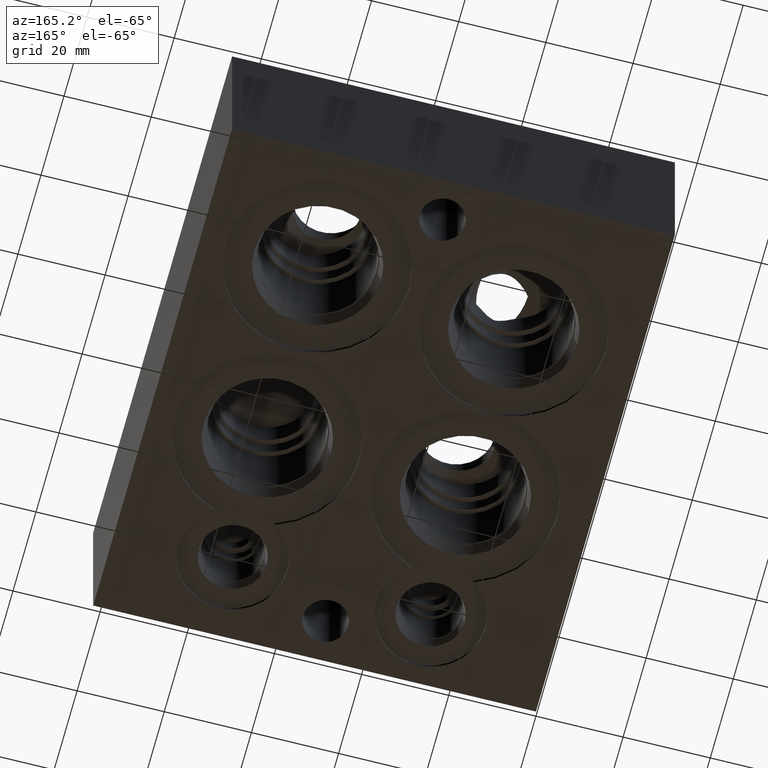
[diagram: clean part render]
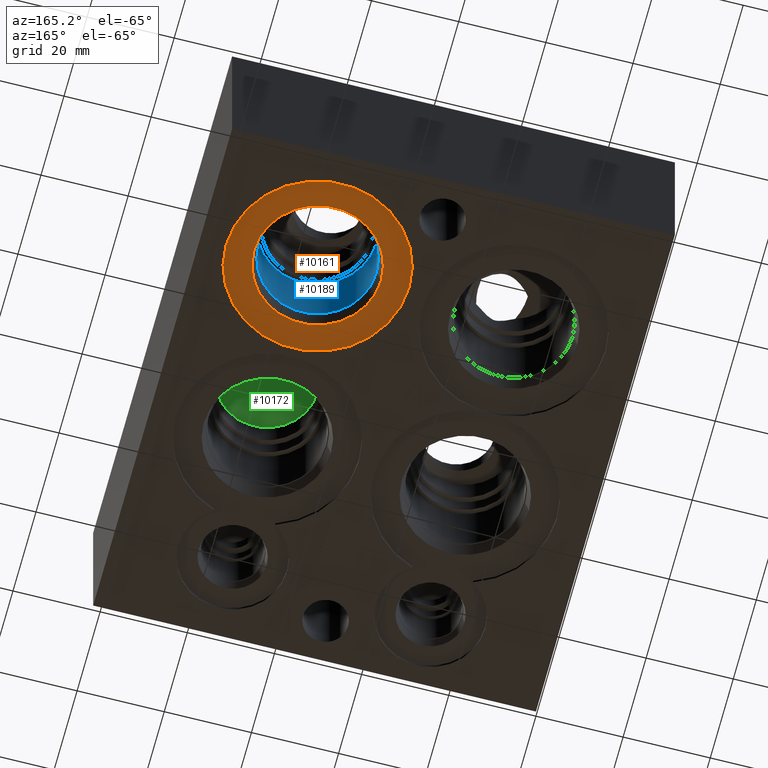
[diagram: same view with three faces highlighted in distinct colors, each labeled with its STEP entity id]
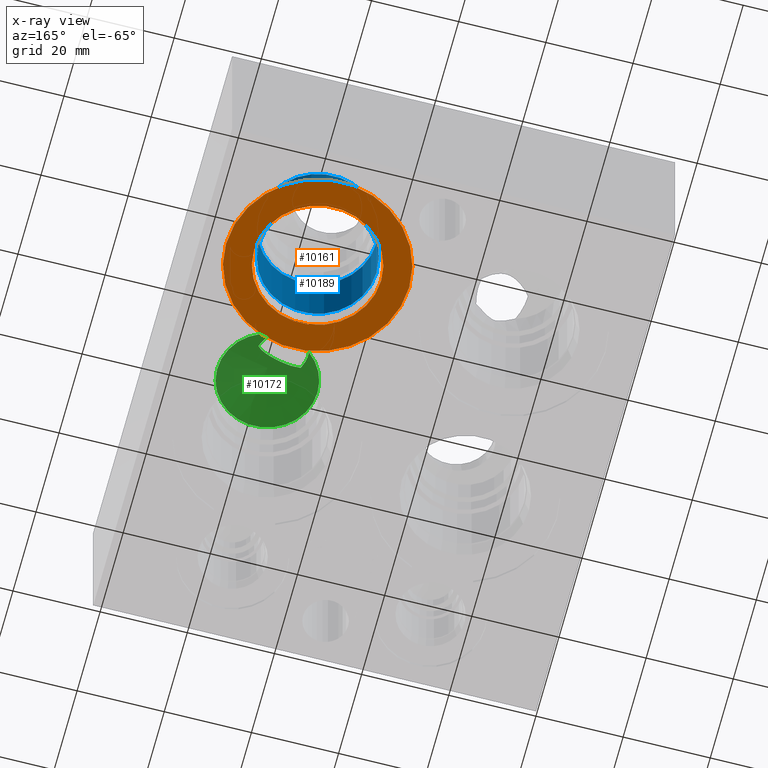
[diagram: x-ray of the same camera — body ghosted, the three highlighted faces saturated]
A machine part, auxiliary view with three faces highlighted in distinct colors.
The next image is the same camera in x-ray (body ghosted, the three faces saturated) — at least one of them is partly hidden behind the body in this view.
Their STEP definitions:

[orange] entity #10161 — the highlighted planar face has unit normal (0, 0, 1).
#232=CIRCLE('',#10592,21.0185);
#233=CIRCLE('',#10593,21.0185);
#234=CIRCLE('',#10595,14.5923);
#235=CIRCLE('',#10596,14.5923);
#703=FACE_BOUND('',#1714,.T.);
#1147=FACE_OUTER_BOUND('',#1713,.T.);
#1713=EDGE_LOOP('',(#8440,#8441));
#1714=EDGE_LOOP('',(#8442,#8443));
#4580=VERTEX_POINT('',#16866);
#4581=VERTEX_POINT('',#16868);
#4582=VERTEX_POINT('',#16872);
#4583=VERTEX_POINT('',#16873);
#5916=EDGE_CURVE('',#4580,#4581,#232,.T.);
#5917=EDGE_CURVE('',#4581,#4580,#233,.T.);
#5918=EDGE_CURVE('',#4582,#4583,#234,.T.);
#5919=EDGE_CURVE('',#4583,#4582,#235,.T.);
#8440=ORIENTED_EDGE('',*,*,#5917,.F.);
#8441=ORIENTED_EDGE('',*,*,#5916,.F.);
#8442=ORIENTED_EDGE('',*,*,#5918,.T.);
#8443=ORIENTED_EDGE('',*,*,#5919,.T.);
#9333=PLANE('',#10594);
#10161=ADVANCED_FACE('',(#1147,#703),#9333,.F.);
#10592=AXIS2_PLACEMENT_3D('',#16869,#12380,#12381);
#10593=AXIS2_PLACEMENT_3D('',#16870,#12382,#12383);
#10594=AXIS2_PLACEMENT_3D('',#16871,#12384,#12385);
#10595=AXIS2_PLACEMENT_3D('',#16874,#12386,#12387);
#10596=AXIS2_PLACEMENT_3D('',#16875,#12388,#12389);
#12380=DIRECTION('center_axis',(0.,0.,1.));
#12381=DIRECTION('ref_axis',(1.,0.,0.));
#12382=DIRECTION('center_axis',(0.,0.,1.));
#12383=DIRECTION('ref_axis',(1.,0.,0.));
#12384=DIRECTION('center_axis',(0.,0.,1.));
#12385=DIRECTION('ref_axis',(1.,0.,0.));
#12386=DIRECTION('center_axis',(0.,0.,1.));
#12387=DIRECTION('ref_axis',(1.,0.,0.));
#12388=DIRECTION('center_axis',(0.,0.,1.));
#12389=DIRECTION('ref_axis',(1.,0.,0.));
#16866=CARTESIAN_POINT('',(53.6067,92.8624,0.7874));
#16868=CARTESIAN_POINT('',(95.6437,92.8624,0.7874));
#16869=CARTESIAN_POINT('Origin',(74.6252,92.8624,0.7874));
#16870=CARTESIAN_POINT('Origin',(74.6252,92.8624,0.7874));
#16871=CARTESIAN_POINT('Origin',(89.2175,92.8624,0.7874));
#16872=CARTESIAN_POINT('',(89.2175,92.8624,0.7874));
#16873=CARTESIAN_POINT('',(60.0329,92.8624,0.7874));
#16874=CARTESIAN_POINT('Origin',(74.6252,92.8624,0.7874));
#16875=CARTESIAN_POINT('Origin',(74.6252,92.8624,0.7874));

[blue] entity #10189 — the highlighted cylindrical surface (bore or boss wall) has radius 13.5001 mm, axis along (0, 0, -1).
#66=CYLINDRICAL_SURFACE('',#10675,13.5001);
#240=CIRCLE('',#10604,13.5001);
#284=CIRCLE('',#10672,13.5001);
#285=CIRCLE('',#10673,13.5001);
#1175=FACE_OUTER_BOUND('',#1746,.T.);
#1746=EDGE_LOOP('',(#8591,#8592,#8593,#8594,#8595));
#2773=LINE('',#17182,#3753);
#3753=VECTOR('',#12571,13.5001);
#4588=VERTEX_POINT('',#16889);
#4640=VERTEX_POINT('',#17175);
#4641=VERTEX_POINT('',#17176);
#5927=EDGE_CURVE('',#4588,#4588,#240,.T.);
#6002=EDGE_CURVE('',#4640,#4641,#284,.T.);
#6003=EDGE_CURVE('',#4641,#4640,#285,.T.);
#6005=EDGE_CURVE('',#4588,#4641,#2773,.T.);
#8591=ORIENTED_EDGE('',*,*,#5927,.T.);
#8592=ORIENTED_EDGE('',*,*,#6005,.T.);
#8593=ORIENTED_EDGE('',*,*,#6002,.F.);
#8594=ORIENTED_EDGE('',*,*,#6003,.F.);
#8595=ORIENTED_EDGE('',*,*,#6005,.F.);
#10189=ADVANCED_FACE('',(#1175),#66,.F.);
#10604=AXIS2_PLACEMENT_3D('',#16891,#12407,#12408);
#10672=AXIS2_PLACEMENT_3D('',#17177,#12563,#12564);
#10673=AXIS2_PLACEMENT_3D('',#17178,#12565,#12566);
#10675=AXIS2_PLACEMENT_3D('',#17181,#12569,#12570);
#12407=DIRECTION('center_axis',(0.,0.,-1.));
#12408=DIRECTION('ref_axis',(1.,0.,0.));
#12563=DIRECTION('center_axis',(0.,0.,-1.));
#12564=DIRECTION('ref_axis',(1.,0.,0.));
#12565=DIRECTION('center_axis',(0.,0.,-1.));
#12566=DIRECTION('ref_axis',(1.,0.,0.));
#12569=DIRECTION('center_axis',(0.,0.,-1.));
#12570=DIRECTION('ref_axis',(1.,0.,0.));
#12571=DIRECTION('',(0.,0.,1.));
#16889=CARTESIAN_POINT('',(61.1251,92.8624,4.27990000000001));
#16891=CARTESIAN_POINT('Origin',(74.6252,92.8624,4.27990000000001));
#17175=CARTESIAN_POINT('',(88.1253,92.8624,19.8374));
#17176=CARTESIAN_POINT('',(61.1251,92.8624,19.8374));
#17177=CARTESIAN_POINT('Origin',(74.6252,92.8624,19.8374));
#17178=CARTESIAN_POINT('Origin',(74.6252,92.8624,19.8374));
#17181=CARTESIAN_POINT('Origin',(74.6252,92.8624,9.9187));
#17182=CARTESIAN_POINT('',(61.1251,92.8624,9.9187));

[green] entity #10172 — the highlighted conical surface has half-angle 60 deg.
#19=CONICAL_SURFACE('',#10624,5.7531,1.0471975511966);
#253=CIRCLE('',#10625,11.5062);
#254=CIRCLE('',#10626,11.5062);
#649=B_SPLINE_CURVE_WITH_KNOTS('',3,(#16988,#16989,#16990,#16991,#16992,
#16993,#16994,#16995),.UNSPECIFIED.,.F.,.F.,(4,2,2,4),(3.17933169543509,
3.19379381135027,3.46538907970959,3.72101241387306),.UNSPECIFIED.);
#650=B_SPLINE_CURVE_WITH_KNOTS('',3,(#17003,#17004,#17005,#17006,#17007,
#17008),.UNSPECIFIED.,.F.,.F.,(4,2,4),(1.3578056641893,1.71277829279499,
1.8980127664492),.UNSPECIFIED.);
#651=B_SPLINE_CURVE_WITH_KNOTS('',3,(#17009,#17010,#17011,#17012,#17013,
#17014,#17015,#17016,#17017,#17018,#17019,#17020,#17021,#17022),
 .UNSPECIFIED.,.F.,.F.,(4,2,2,2,2,2,4),(4.30418326242366,4.5609478931802,
4.74605461132585,4.93116132947151,5.11626804761717,5.30137476576283,5.55813939651937),
 .UNSPECIFIED.);
#1158=FACE_OUTER_BOUND('',#1726,.T.);
#1726=EDGE_LOOP('',(#8501,#8502,#8503,#8504,#8505,#8506,#8507));
#2759=LINE('',#16999,#3739);
#3739=VECTOR('',#12457,5.7531);
#4605=VERTEX_POINT('',#16986);
#4606=VERTEX_POINT('',#16987);
#4607=VERTEX_POINT('',#16996);
#4608=VERTEX_POINT('',#16998);
#4609=VERTEX_POINT('',#17000);
#4610=VERTEX_POINT('',#17002);
#5950=EDGE_CURVE('',#4605,#4606,#649,.T.);
#5951=EDGE_CURVE('',#4605,#4607,#253,.T.);
#5952=EDGE_CURVE('',#4607,#4608,#2759,.T.);
#5953=EDGE_CURVE('',#4607,#4609,#254,.T.);
#5954=EDGE_CURVE('',#4610,#4609,#650,.T.);
#5955=EDGE_CURVE('',#4610,#4606,#651,.T.);
#8501=ORIENTED_EDGE('',*,*,#5950,.F.);
#8502=ORIENTED_EDGE('',*,*,#5951,.T.);
#8503=ORIENTED_EDGE('',*,*,#5952,.T.);
#8504=ORIENTED_EDGE('',*,*,#5952,.F.);
#8505=ORIENTED_EDGE('',*,*,#5953,.T.);
#8506=ORIENTED_EDGE('',*,*,#5954,.F.);
#8507=ORIENTED_EDGE('',*,*,#5955,.T.);
#10172=ADVANCED_FACE('',(#1158),#19,.F.);
#10624=AXIS2_PLACEMENT_3D('',#16985,#12453,#12454);
#10625=AXIS2_PLACEMENT_3D('',#16997,#12455,#12456);
#10626=AXIS2_PLACEMENT_3D('',#17001,#12458,#12459);
#12453=DIRECTION('center_axis',(0.,0.,-1.));
#12454=DIRECTION('ref_axis',(1.,0.,0.));
#12455=DIRECTION('center_axis',(0.,0.,-1.));
#12456=DIRECTION('ref_axis',(1.,0.,0.));
#12457=DIRECTION('',(0.866025403784439,-1.06057523872491E-16,0.5));
#12458=DIRECTION('center_axis',(0.,0.,-1.));
#12459=DIRECTION('ref_axis',(1.,0.,0.));
#16985=CARTESIAN_POINT('Origin',(74.6252,49.1998,34.1787738336748));
#16986=CARTESIAN_POINT('',(76.3512566905063,60.5757995930537,30.85722));
#16987=CARTESIAN_POINT('',(78.4492883131174,55.8818726322116,33.05534));
#16988=CARTESIAN_POINT('Ctrl Pts',(76.3512566905063,60.5757995930537,30.85722));
#16989=CARTESIAN_POINT('Ctrl Pts',(76.3789948660517,60.5397315078952,30.8754059092036));
#16990=CARTESIAN_POINT('Ctrl Pts',(76.4064885740861,60.5034487821366,30.8936543740233));
#16991=CARTESIAN_POINT('Ctrl Pts',(76.9454972280275,59.7816473897445,31.2557993777796));
#16992=CARTESIAN_POINT('Ctrl Pts',(77.3724772574509,59.023304421136,31.6207433215455));
#16993=CARTESIAN_POINT('Ctrl Pts',(78.0372777682439,57.469910063102,32.3448866320034));
#16994=CARTESIAN_POINT('Ctrl Pts',(78.2835323356112,56.6806434118364,32.7026146966896));
#16995=CARTESIAN_POINT('Ctrl Pts',(78.4492883131174,55.8818726322116,33.05534));
#16996=CARTESIAN_POINT('',(63.119,49.1998,30.85722));
#16997=CARTESIAN_POINT('Origin',(74.6252,49.1998,30.85722));
#16998=CARTESIAN_POINT('',(74.6252,49.1998,37.5003276673497));
#16999=CARTESIAN_POINT('',(68.8721,49.1998,34.1787738336748));
#17000=CARTESIAN_POINT('',(67.4663218315314,58.2077465922608,30.85722));
#17001=CARTESIAN_POINT('Origin',(74.6252,49.1998,30.85722));
#17002=CARTESIAN_POINT('',(67.9827342945847,53.0922793436901,33.05534));
#17003=CARTESIAN_POINT('Ctrl Pts',(67.9827342945847,53.0922793436901,33.05534));
#17004=CARTESIAN_POINT('Ctrl Pts',(67.6200180665335,54.2004162794935,32.5511968511072));
#17005=CARTESIAN_POINT('Ctrl Pts',(67.4193619998187,55.3535716343986,32.0462898727679));
#17006=CARTESIAN_POINT('Ctrl Pts',(67.3624010025138,57.0115961420845,31.3461499721851));
#17007=CARTESIAN_POINT('Ctrl Pts',(67.3853500269756,57.6100033862147,31.0983105574444));
#17008=CARTESIAN_POINT('Ctrl Pts',(67.4663218315314,58.2077465922608,30.85722));
#17009=CARTESIAN_POINT('Ctrl Pts',(67.9827342945847,53.0922793436901,33.05534));
#17010=CARTESIAN_POINT('Ctrl Pts',(68.6865911642265,52.7879697626261,33.4947760805947));
#17011=CARTESIAN_POINT('Ctrl Pts',(69.4503136565758,52.5702014804669,33.9414578047183));
#17012=CARTESIAN_POINT('Ctrl Pts',(70.7954501485715,52.3808022681713,34.6302706545864));
#17013=CARTESIAN_POINT('Ctrl Pts',(71.3666956004461,52.3561112791514,34.8948087159509));
#17014=CARTESIAN_POINT('Ctrl Pts',(72.5205531819961,52.4213753310859,35.294719633816));
#17015=CARTESIAN_POINT('Ctrl Pts',(73.1042230183613,52.510622378531,35.4271498195049));
#17016=CARTESIAN_POINT('Ctrl Pts',(74.2966423974148,52.828431381477,35.427149819505));
#17017=CARTESIAN_POINT('Ctrl Pts',(74.8473074454077,53.041512394895,35.294719633816));
#17018=CARTESIAN_POINT('Ctrl Pts',(75.8805897833774,53.5591747607429,34.8948087159509));
#17019=CARTESIAN_POINT('Ctrl Pts',(76.3637721125127,53.8648966082409,34.6302706545865));
#17020=CARTESIAN_POINT('Ctrl Pts',(77.436215944433,54.6986402565482,33.9414578047183));
#17021=CARTESIAN_POINT('Ctrl Pts',(77.9902500046636,55.2676229716979,33.4947760805947));
#17022=CARTESIAN_POINT('Ctrl Pts',(78.4492883131174,55.8818726322116,33.05534));